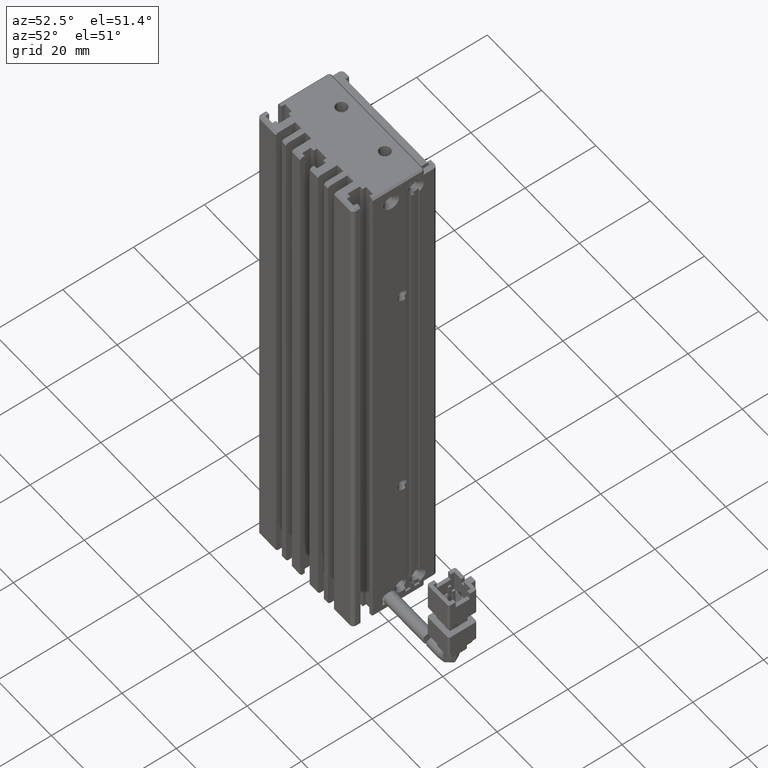
[diagram: clean part render]
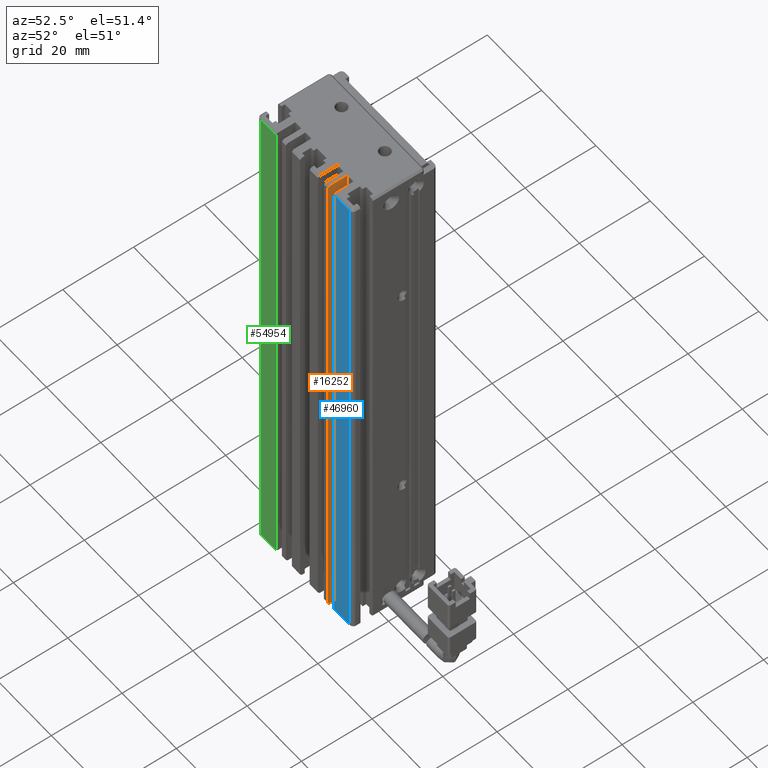
[diagram: same view with three faces highlighted in distinct colors, each labeled with its STEP entity id]
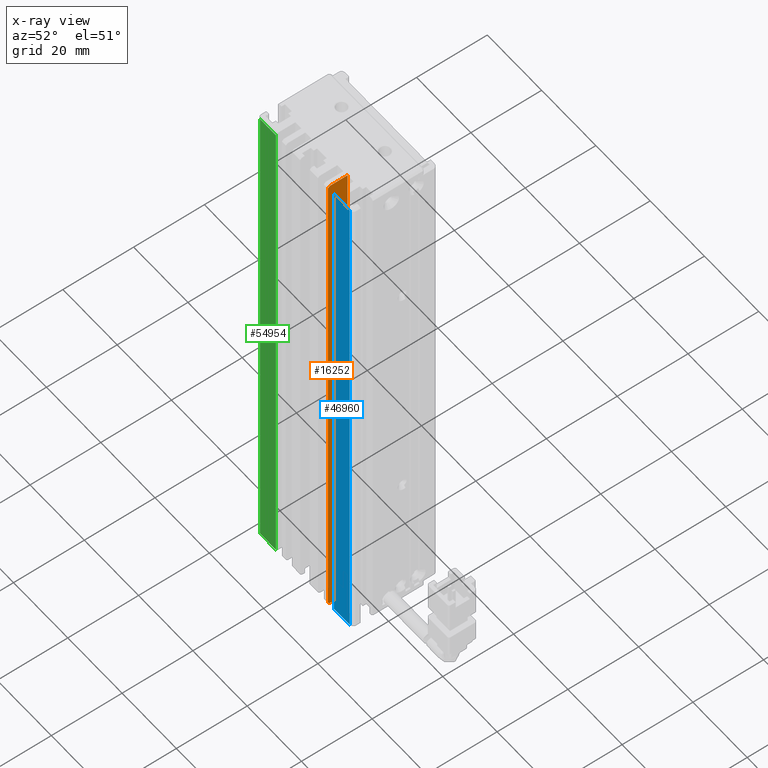
[diagram: x-ray of the same camera — body ghosted, the three highlighted faces saturated]
A machine part, auxiliary view with three faces highlighted in distinct colors.
The next image is the same camera in x-ray (body ghosted, the three faces saturated) — at least one of them is partly hidden behind the body in this view.
Their STEP definitions:

[orange] entity #16252 — the highlighted planar face has unit normal (-1, 0, 0).
#1359 = CARTESIAN_POINT ( 'NONE',  ( 49.42537974683541800, 7.083797468354437600, -40.00000000000000700 ) ) ;
#2149 = ORIENTED_EDGE ( 'NONE', *, *, #48454, .F. ) ;
#2760 = ORIENTED_EDGE ( 'NONE', *, *, #66369, .F. ) ;
#2921 = EDGE_CURVE ( 'NONE', #15466, #28625, #38205, .T. ) ;
#2999 = VERTEX_POINT ( 'NONE', #64210 ) ;
#3149 = DIRECTION ( 'NONE',  ( 0.0000000000000000000, 0.0000000000000000000, 1.000000000000000000 ) ) ;
#3495 = VECTOR ( 'NONE', #57377, 1000.000000000000000 ) ;
#6619 = DIRECTION ( 'NONE',  ( 0.0000000000000000000, 1.000000000000000000, -0.0000000000000000000 ) ) ;
#6780 = EDGE_CURVE ( 'NONE', #52561, #17812, #46288, .T. ) ;
#8459 = DIRECTION ( 'NONE',  ( -1.000000000000000000, 0.0000000000000000000, 0.0000000000000000000 ) ) ;
#10930 = FACE_OUTER_BOUND ( 'NONE', #59859, .T. ) ;
#13350 = CARTESIAN_POINT ( 'NONE',  ( 49.42537974683541800, 11.49073232304837200, -190.0000000000000000 ) ) ;
#15466 = VERTEX_POINT ( 'NONE', #38485 ) ;
#16252 = ADVANCED_FACE ( 'NONE', ( #10930 ), #63205, .F. ) ;
#16271 = DIRECTION ( 'NONE',  ( -0.0000000000000000000, -0.0000000000000000000, -1.000000000000000000 ) ) ;
#17812 = VERTEX_POINT ( 'NONE', #29438 ) ;
#21545 = CARTESIAN_POINT ( 'NONE',  ( 49.42537974683541800, 11.49073232304836800, -40.00000000000000700 ) ) ;
#21726 = CARTESIAN_POINT ( 'NONE',  ( 49.42537974683541800, 16.49073232304836600, -190.0000000000000000 ) ) ;
#22503 = LINE ( 'NONE', #38469, #32816 ) ;
#24538 = DIRECTION ( 'NONE',  ( 0.0000000000000000000, 1.000000000000000000, -0.0000000000000000000 ) ) ;
#26827 = ORIENTED_EDGE ( 'NONE', *, *, #48221, .F. ) ;
#27480 = CARTESIAN_POINT ( 'NONE',  ( 49.42537974683541800, 16.49073232304836600, -40.00000000000000700 ) ) ;
#28625 = VERTEX_POINT ( 'NONE', #21726 ) ;
#29120 = LINE ( 'NONE', #27480, #47056 ) ;
#29438 = CARTESIAN_POINT ( 'NONE',  ( 49.42537974683541800, 10.99073232304836300, -40.50000000000002100 ) ) ;
#31553 = LINE ( 'NONE', #13350, #36686 ) ;
#32816 = VECTOR ( 'NONE', #45353, 999.9999999999998900 ) ;
#34536 = ORIENTED_EDGE ( 'NONE', *, *, #2921, .T. ) ;
#34719 = ORIENTED_EDGE ( 'NONE', *, *, #55814, .F. ) ;
#35867 = VECTOR ( 'NONE', #6619, 1000.000000000000000 ) ;
#36686 = VECTOR ( 'NONE', #68519, 999.9999999999998900 ) ;
#38205 = LINE ( 'NONE', #68493, #46741 ) ;
#38469 = CARTESIAN_POINT ( 'NONE',  ( 49.42537974683541800, 10.99073232304837000, -40.50000000000000700 ) ) ;
#38485 = CARTESIAN_POINT ( 'NONE',  ( 49.42537974683541800, 11.49073232304837500, -190.0000000000000000 ) ) ;
#41217 = VERTEX_POINT ( 'NONE', #21545 ) ;
#43481 = LINE ( 'NONE', #1359, #35867 ) ;
#45353 = DIRECTION ( 'NONE',  ( 0.0000000000000000000, 0.7071067811865462400, 0.7071067811865489100 ) ) ;
#46288 = LINE ( 'NONE', #46328, #3495 ) ;
#46328 = CARTESIAN_POINT ( 'NONE',  ( 49.42537974683541800, 10.99073232304835700, -40.00000000000000700 ) ) ;
#46741 = VECTOR ( 'NONE', #24538, 1000.000000000000000 ) ;
#47056 = VECTOR ( 'NONE', #16271, 1000.000000000000000 ) ;
#48221 = EDGE_CURVE ( 'NONE', #41217, #2999, #43481, .T. ) ;
#48454 = EDGE_CURVE ( 'NONE', #15466, #52561, #31553, .T. ) ;
#52561 = VERTEX_POINT ( 'NONE', #54322 ) ;
#54322 = CARTESIAN_POINT ( 'NONE',  ( 49.42537974683541800, 10.99073232304836300, -189.5000000000000000 ) ) ;
#55814 = EDGE_CURVE ( 'NONE', #17812, #41217, #22503, .T. ) ;
#57377 = DIRECTION ( 'NONE',  ( 0.0000000000000000000, 0.0000000000000000000, 1.000000000000000000 ) ) ;
#59859 = EDGE_LOOP ( 'NONE', ( #2149, #34536, #2760, #26827, #34719, #65378 ) ) ;
#63205 = PLANE ( 'NONE',  #70648 ) ;
#64210 = CARTESIAN_POINT ( 'NONE',  ( 49.42537974683541800, 16.49073232304836600, -40.00000000000000700 ) ) ;
#65378 = ORIENTED_EDGE ( 'NONE', *, *, #6780, .F. ) ;
#66369 = EDGE_CURVE ( 'NONE', #2999, #28625, #29120, .T. ) ;
#68191 = CARTESIAN_POINT ( 'NONE',  ( 49.42537974683541800, 7.083797468354437600, -40.00000000000000700 ) ) ;
#68493 = CARTESIAN_POINT ( 'NONE',  ( 49.42537974683541800, 7.083797468354437600, -190.0000000000000000 ) ) ;
#68519 = DIRECTION ( 'NONE',  ( 0.0000000000000000000, -0.7071067811865376900, 0.7071067811865574500 ) ) ;
#70648 = AXIS2_PLACEMENT_3D ( 'NONE', #68191, #8459, #3149 ) ;

[blue] entity #46960 — the highlighted planar face has unit normal (-0, 1, 0).
#878 = CARTESIAN_POINT ( 'NONE',  ( 40.92537974683542500, 10.99073232304836800, -40.50000000000000700 ) ) ;
#1881 = CARTESIAN_POINT ( 'NONE',  ( 57.42537974683542500, 10.99073232304837500, -40.00000000000000700 ) ) ;
#2929 = ORIENTED_EDGE ( 'NONE', *, *, #34066, .T. ) ;
#4030 = CARTESIAN_POINT ( 'NONE',  ( 51.62537974683542100, 10.99073232304837000, -40.50000000000000700 ) ) ;
#4917 = PLANE ( 'NONE',  #41648 ) ;
#4953 = EDGE_LOOP ( 'NONE', ( #2929, #60517, #47606, #35892 ) ) ;
#9453 = VECTOR ( 'NONE', #58133, 1000.000000000000000 ) ;
#10434 = CARTESIAN_POINT ( 'NONE',  ( 40.92537974683542500, 10.99073232304836300, -40.00000000000000700 ) ) ;
#17165 = LINE ( 'NONE', #1881, #68466 ) ;
#17181 = DIRECTION ( 'NONE',  ( 1.000000000000000000, 3.738628180984490700E-016, -3.738628180984490700E-016 ) ) ;
#20534 = LINE ( 'NONE', #42295, #9453 ) ;
#20703 = DIRECTION ( 'NONE',  ( -7.477256361968982400E-016, 1.000000000000000000, 0.0000000000000000000 ) ) ;
#21674 = VERTEX_POINT ( 'NONE', #46716 ) ;
#23917 = DIRECTION ( 'NONE',  ( -0.0000000000000000000, -0.0000000000000000000, -1.000000000000000000 ) ) ;
#24241 = CARTESIAN_POINT ( 'NONE',  ( 57.42537974683542500, 10.99073232304568000, -189.5000000000001100 ) ) ;
#26256 = EDGE_CURVE ( 'NONE', #47970, #60351, #40018, .T. ) ;
#34066 = EDGE_CURVE ( 'NONE', #21674, #60388, #60013, .T. ) ;
#35892 = ORIENTED_EDGE ( 'NONE', *, *, #48003, .F. ) ;
#38865 = CARTESIAN_POINT ( 'NONE',  ( 57.42537974683543200, 10.99073232304200700, -40.49999999999990100 ) ) ;
#40018 = LINE ( 'NONE', #878, #56269 ) ;
#41648 = AXIS2_PLACEMENT_3D ( 'NONE', #10434, #20703, #59012 ) ;
#42295 = CARTESIAN_POINT ( 'NONE',  ( 51.62537974683541400, 10.99073232304837000, -40.00000000000000700 ) ) ;
#43783 = FACE_OUTER_BOUND ( 'NONE', #4953, .T. ) ;
#46716 = CARTESIAN_POINT ( 'NONE',  ( 51.62537974683542100, 10.99073232304835200, -189.5000000000000000 ) ) ;
#46960 = ADVANCED_FACE ( 'NONE', ( #43783 ), #4917, .F. ) ;
#47606 = ORIENTED_EDGE ( 'NONE', *, *, #26256, .F. ) ;
#47838 = EDGE_CURVE ( 'NONE', #60351, #60388, #17165, .T. ) ;
#47970 = VERTEX_POINT ( 'NONE', #4030 ) ;
#48003 = EDGE_CURVE ( 'NONE', #21674, #47970, #20534, .T. ) ;
#48759 = VECTOR ( 'NONE', #67184, 1000.000000000000000 ) ;
#55941 = CARTESIAN_POINT ( 'NONE',  ( 40.92537974683542500, 10.99073232304834100, -189.5000000000000000 ) ) ;
#56269 = VECTOR ( 'NONE', #17181, 1000.000000000000000 ) ;
#58133 = DIRECTION ( 'NONE',  ( 0.0000000000000000000, 0.0000000000000000000, 1.000000000000000000 ) ) ;
#59012 = DIRECTION ( 'NONE',  ( -1.000000000000000000, -7.477256361968982400E-016, 0.0000000000000000000 ) ) ;
#60013 = LINE ( 'NONE', #55941, #48759 ) ;
#60351 = VERTEX_POINT ( 'NONE', #38865 ) ;
#60388 = VERTEX_POINT ( 'NONE', #24241 ) ;
#60517 = ORIENTED_EDGE ( 'NONE', *, *, #47838, .F. ) ;
#67184 = DIRECTION ( 'NONE',  ( 1.000000000000000000, 3.738628180984490700E-016, 3.738628180984490700E-016 ) ) ;
#68466 = VECTOR ( 'NONE', #23917, 1000.000000000000000 ) ;

[green] entity #54954 — the highlighted planar face has unit normal (0, -1, 0).
#551 = EDGE_CURVE ( 'NONE', #64619, #58275, #28179, .T. ) ;
#1873 = CARTESIAN_POINT ( 'NONE',  ( 24.42537974683542500, 10.99073232304837000, -40.00000000000000700 ) ) ;
#2145 = VERTEX_POINT ( 'NONE', #51522 ) ;
#6966 = ORIENTED_EDGE ( 'NONE', *, *, #8417, .T. ) ;
#8417 = EDGE_CURVE ( 'NONE', #58275, #2145, #36631, .T. ) ;
#13037 = DIRECTION ( 'NONE',  ( 0.0000000000000000000, -1.000000000000000000, 0.0000000000000000000 ) ) ;
#13163 = ORIENTED_EDGE ( 'NONE', *, *, #45118, .F. ) ;
#13477 = LINE ( 'NONE', #51128, #69885 ) ;
#13670 = LINE ( 'NONE', #30981, #70052 ) ;
#15137 = VECTOR ( 'NONE', #62229, 1000.000000000000000 ) ;
#21175 = FACE_OUTER_BOUND ( 'NONE', #54856, .T. ) ;
#22389 = ORIENTED_EDGE ( 'NONE', *, *, #551, .T. ) ;
#22608 = EDGE_CURVE ( 'NONE', #43723, #64619, #13477, .T. ) ;
#26431 = CARTESIAN_POINT ( 'NONE',  ( 24.42537974683542500, 10.99073232305235100, -40.49999999998567500 ) ) ;
#28179 = LINE ( 'NONE', #62423, #70898 ) ;
#29629 = DIRECTION ( 'NONE',  ( -1.000000000000000000, 0.0000000000000000000, -0.0000000000000000000 ) ) ;
#30981 = CARTESIAN_POINT ( 'NONE',  ( 40.92537974683542500, 10.99073232304834300, -189.5000000000000000 ) ) ;
#34411 = DIRECTION ( 'NONE',  ( 0.0000000000000000000, 0.0000000000000000000, 1.000000000000000000 ) ) ;
#36631 = LINE ( 'NONE', #1873, #15137 ) ;
#36735 = DIRECTION ( 'NONE',  ( -1.000000000000000000, -0.0000000000000000000, -0.0000000000000000000 ) ) ;
#37800 = AXIS2_PLACEMENT_3D ( 'NONE', #56278, #13037, #46193 ) ;
#43723 = VERTEX_POINT ( 'NONE', #54755 ) ;
#45118 = EDGE_CURVE ( 'NONE', #43723, #2145, #13670, .T. ) ;
#46193 = DIRECTION ( 'NONE',  ( 0.0000000000000000000, -0.0000000000000000000, -1.000000000000000000 ) ) ;
#48757 = ORIENTED_EDGE ( 'NONE', *, *, #22608, .T. ) ;
#51128 = CARTESIAN_POINT ( 'NONE',  ( 30.22537974683543300, 10.99073232304835700, -40.00000000000000700 ) ) ;
#51522 = CARTESIAN_POINT ( 'NONE',  ( 24.42537974683541800, 10.99073232305620200, -189.5000000000001100 ) ) ;
#51690 = PLANE ( 'NONE',  #37800 ) ;
#54755 = CARTESIAN_POINT ( 'NONE',  ( 30.22537974683542900, 10.99073232304835200, -189.4999999999999700 ) ) ;
#54856 = EDGE_LOOP ( 'NONE', ( #48757, #22389, #6966, #13163 ) ) ;
#54954 = ADVANCED_FACE ( 'NONE', ( #21175 ), #51690, .T. ) ;
#56278 = CARTESIAN_POINT ( 'NONE',  ( 40.92537974683542500, 10.99073232304837000, -40.00000000000000700 ) ) ;
#58148 = CARTESIAN_POINT ( 'NONE',  ( 30.22537974683542900, 10.99073232304836300, -40.49999999999999300 ) ) ;
#58275 = VERTEX_POINT ( 'NONE', #26431 ) ;
#62229 = DIRECTION ( 'NONE',  ( 0.0000000000000000000, -0.0000000000000000000, -1.000000000000000000 ) ) ;
#62423 = CARTESIAN_POINT ( 'NONE',  ( 40.92537974683542500, 10.99073232304837000, -40.49999999999999300 ) ) ;
#64619 = VERTEX_POINT ( 'NONE', #58148 ) ;
#69885 = VECTOR ( 'NONE', #34411, 1000.000000000000000 ) ;
#70052 = VECTOR ( 'NONE', #36735, 1000.000000000000000 ) ;
#70898 = VECTOR ( 'NONE', #29629, 1000.000000000000000 ) ;